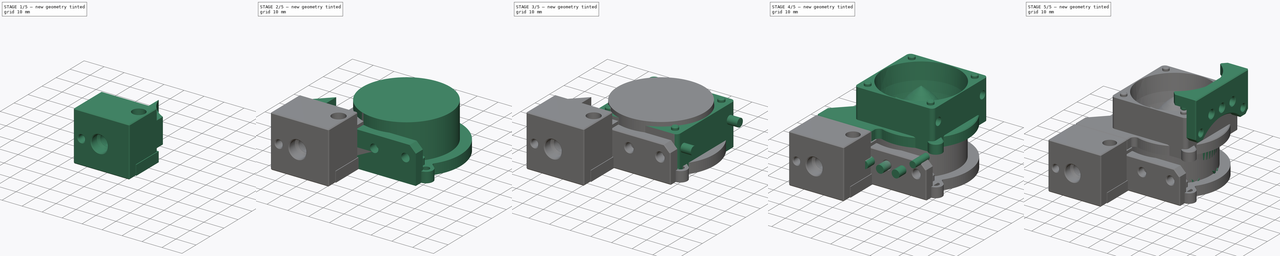
[diagram: build sequence overview — one tinted view per stage of 5, left to right]
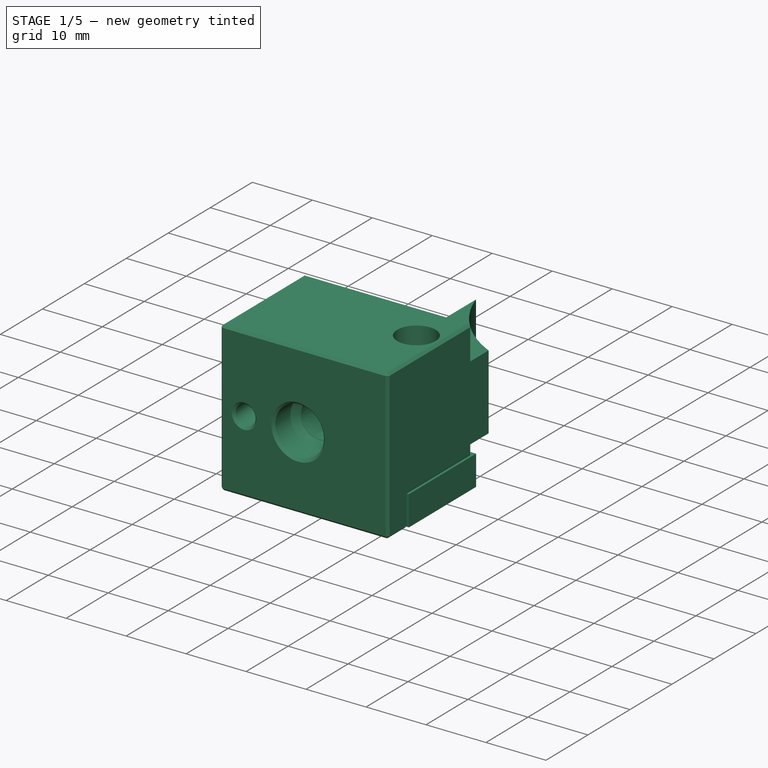
[diagram: stage 1 of 5 — iso view after this stage's code; geometry added in this stage tinted green]
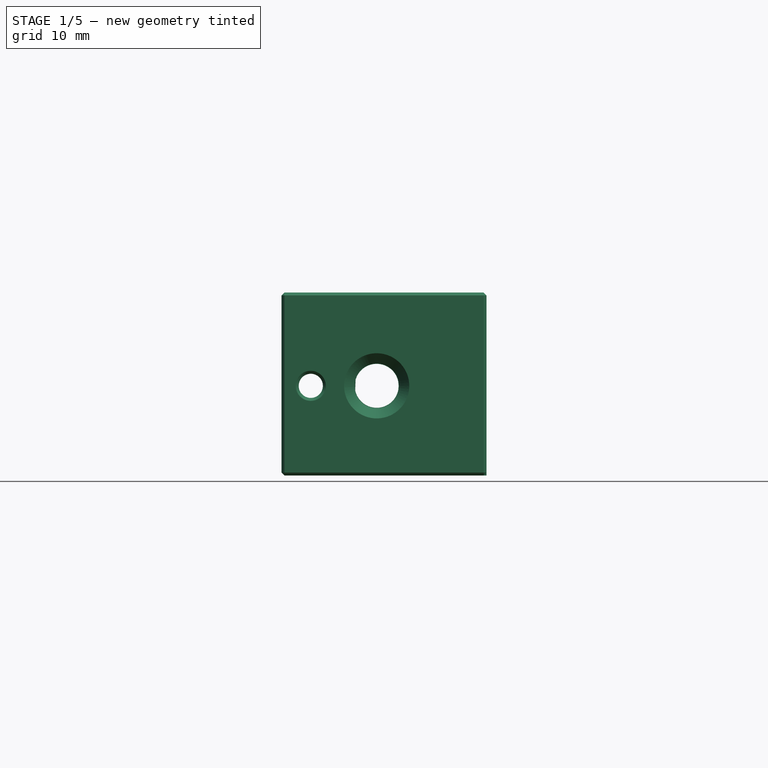
[diagram: stage 1 of 5 — front view after this stage's code; geometry added in this stage tinted green]
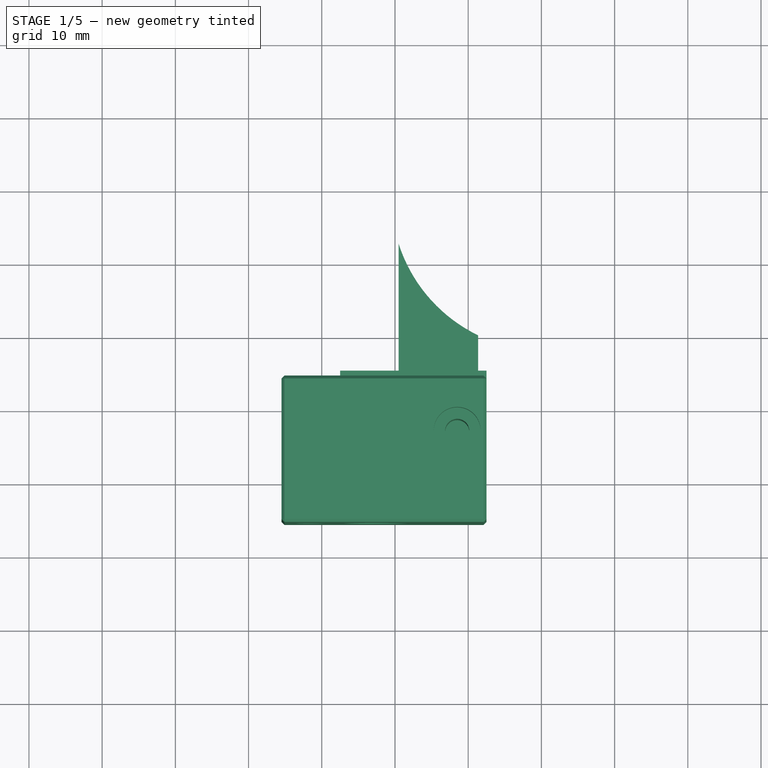
[diagram: stage 1 of 5 — top view after this stage's code; geometry added in this stage tinted green]
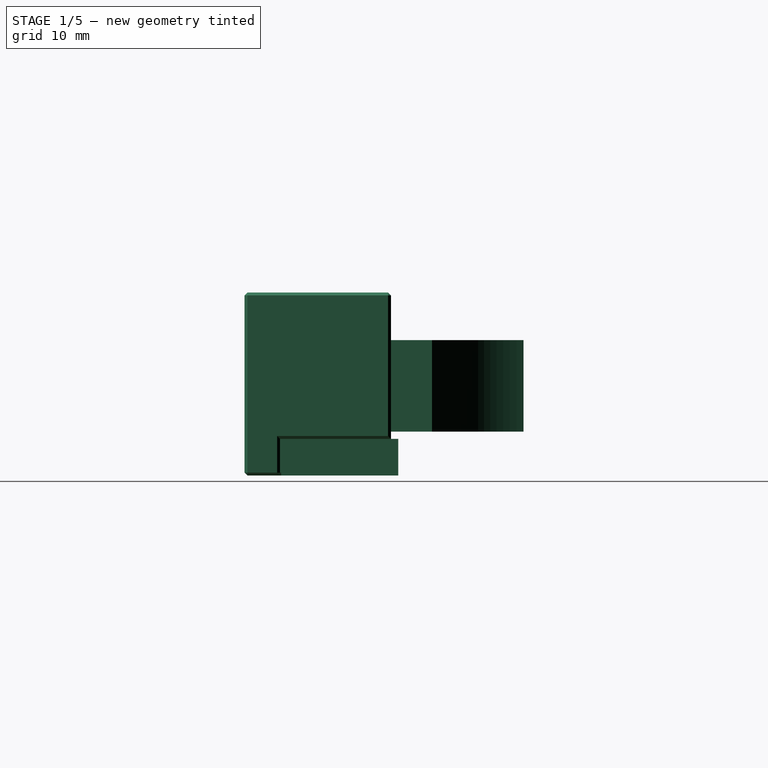
[diagram: stage 1 of 5 — right view after this stage's code; geometry added in this stage tinted green]
FCSTD DOCUMENT  (FreeCAD 0.19R24291 (Git))
Label: 40xx-to-5015-duct
License: Other
LicenseURL: GPL3
objects: Part::Cylinder×38, Part::Feature×35, Part::MultiFuse×22, Part::Cut×20, Part::Chamfer×18, Part::Box×13, Part::Refine×4, Part::Extrusion×3, Sketcher::SketchObject×2, PartDesign::Revolution×2, PartDesign::Body×2, App::Part×2, Part::Fillet×1
note: 162 computed .brp shape members not serialized (recipe doc carries the construction recipe); baked Part::Feature solids carry a one-line shape summary decoded from their .brp

FEATURE [Part::Box] Box001  label="Cube001"
  AttacherType = Attacher::AttachEngine3D
  Height = 5
  Length = 20
  Placement = pos=(-27.5,-40.5,0) rot=(0,0,1;0rad)
  Width = 16
FEATURE [Part::Feature] Chamfer009003007001
  shape: bbox 40 x 13 x 17 mm, 37 faces (baked)
FEATURE [Part::Box] Box008  label="Cube008"
  AttacherType = Attacher::AttachEngine3D
  Height = 25
  Length = 7.85
  Placement = pos=(-35.5,-45.5,0) rot=(0,0,1;0rad)
  Width = 20
FEATURE [Part::Box] Box012  label="Cube012"
  AttacherType = Attacher::AttachEngine3D
  Height = 20
  Length = 20.5
  Placement = pos=(-28,-45.5,5) rot=(0,0,1;0rad)
  Width = 20
FEATURE [Part::Box] Box013  label="Cube013"
  AttacherType = Attacher::AttachEngine3D
  Height = 12.5
  Length = 10.85
  Placement = pos=(-19.5,-25.5,6) rot=(0,0,1;0rad)
  Width = 19
FEATURE [Part::Cylinder] Cylinder039
  Angle = 360
  AttacherType = Attacher::AttachEngine3D
  Height = 22
  Placement = pos=(0.5,-1,0) rot=(0,0,1;0rad)
  Radius = 21
FEATURE [Part::Cut] Cut004003006006004
  Base = -> Box013
  Tool = -> Cylinder039
FEATURE [Part::Feature] AdditiveLoft001  label="loft"
  Placement = pos=(-22.5,-25.5,12.25) rot=(1,0,0;1.5708rad)
  shape: bbox 6.22 x 15 x 12.5 mm, 7 faces (baked)
FEATURE [Part::Cylinder] Cylinder040
  Angle = 360
  AttacherType = Attacher::AttachEngine3D
  Height = 27
  Placement = pos=(-11.5,-33,0) rot=(0,0,1;0rad)
  Radius = 1.65
FEATURE [Part::Cylinder] Cylinder041
  Angle = 360
  AttacherType = Attacher::AttachEngine3D
  Height = 4
  Placement = pos=(-11.5,-33,21) rot=(0,0,1;0rad)
  Radius = 3.2
FEATURE [Part::MultiFuse] Fusion001029002
  Shapes = -> [Cylinder041,Cylinder040]
FEATURE [Part::Cylinder] Cylinder042
  Angle = 360
  AttacherType = Attacher::AttachEngine3D
  Height = 5
  Placement = pos=(-31.5,-25.5,12.25) rot=(1,0,0;1.5708rad)
  Radius = 3.5
FEATURE [Part::Box] Box014  label="Cube014"
  AttacherType = Attacher::AttachEngine3D
  Height = 7
  Length = 3.5
  Placement = pos=(-35.5,-30.5,8.75) rot=(0,0,1;0rad)
  Width = 5
FEATURE [Part::Cylinder] Cylinder043
  Angle = 360
  AttacherType = Attacher::AttachEngine3D
  Height = 38
  Placement = pos=(-31.5,-16.5,12.25) rot=(1,0,0;1.5708rad)
  Radius = 1.65
FEATURE [Part::Box] Box015  label="Cube015"
  AttacherType = Attacher::AttachEngine3D
  Height = 5
  Length = 20.5
  Placement = pos=(-28,-45.5,0) rot=(0,0,1;0rad)
  Width = 4.85
FEATURE [Part::MultiFuse] Fusion001029004
  Shapes = -> [Box008,Box015,Box012,Cut004003006006004]
FEATURE [Part::Cut] Cut004003006006005
  Base = -> Fusion001029004
  Tool = -> Fusion001029002
FEATURE [Part::MultiFuse] Fusion001029005
  Shapes = -> [Cylinder043,Box014,Cylinder042]
FEATURE [Part::Cut] Cut004003006006006
  Base = -> Cut004003006006005
  Tool = -> Fusion001029005
FEATURE [Part::Cylinder] Cylinder044
  Angle = 360
  AttacherType = Attacher::AttachEngine3D
  Height = 10
  Placement = pos=(-22.5,-40.5,12.25) rot=(1,0,0;1.5708rad)
  Radius = 4.05
FEATURE [Part::Cut] Cut004003006006007
  Base = -> Cut004003006006006
  Tool = -> AdditiveLoft001
FEATURE [Part::Cylinder] Cylinder045
  Angle = 360
  AttacherType = Attacher::AttachEngine3D
  Height = 10
  Placement = pos=(-11.5,-33,0) rot=(0,0,1;0rad)
  Radius = 1.9
FEATURE [Part::Chamfer] Chamfer009003007004
  Base = -> Cylinder044
  Edges = 1 edges r=1: [Edge3]
FEATURE [Part::Cut] Cut004003006006008003  label="duct-r1-base"
  Base = -> Cut004003006006007
  Tool = -> Chamfer009003007004
FEATURE [Part::Refine] Cut004003006006008003001  label="duct-r1-base001"
  Source = -> Cut004003006006008003
FEATURE [Part::Chamfer] Chamfer009003007005
  Base = -> Cut004003006006008003001
  Edges = 22 edges r=0.4: [Edge1,Edge2,Edge3,Edge4,Edge5,Edge6,Edge7,Edge8,Edge21,Edge22,Edge23,Edge31,Edge32,Edge33,Edge36,Edge39,Edge40,Edge51,Edge80,Edge81,Edge82,Edge83]
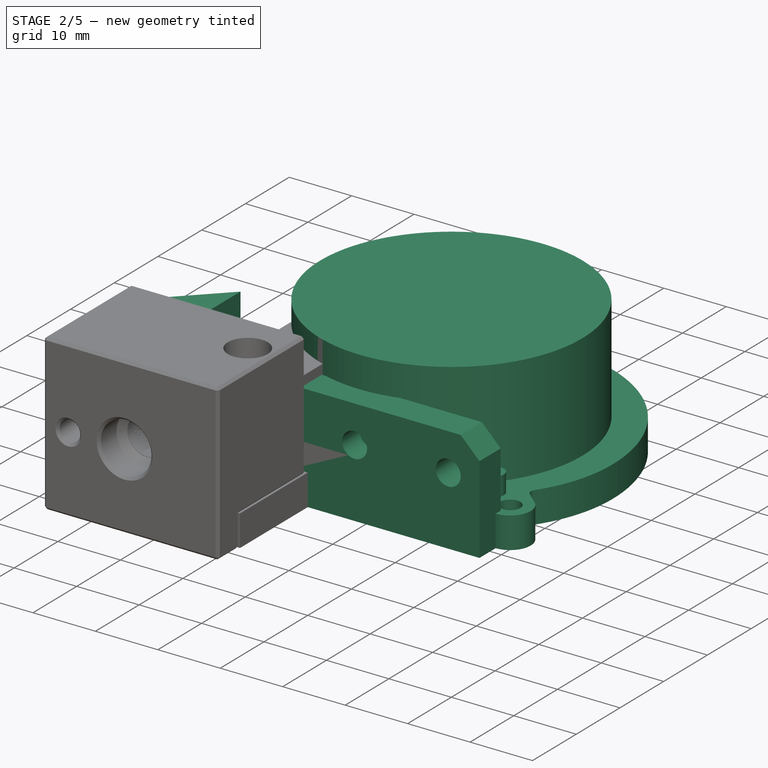
[diagram: stage 2 of 5 — iso view after this stage's code; geometry added in this stage tinted green]
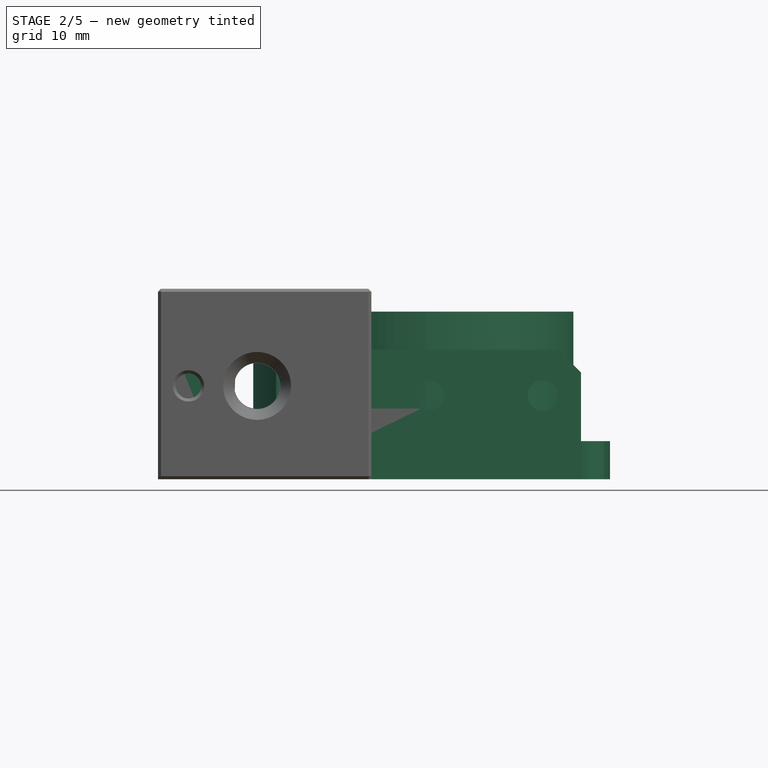
[diagram: stage 2 of 5 — front view after this stage's code; geometry added in this stage tinted green]
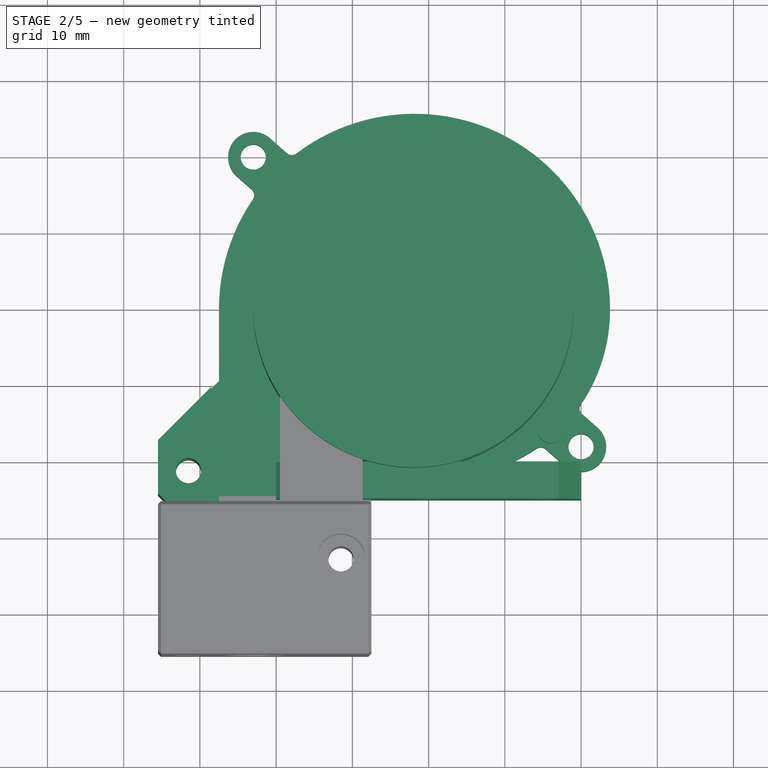
[diagram: stage 2 of 5 — top view after this stage's code; geometry added in this stage tinted green]
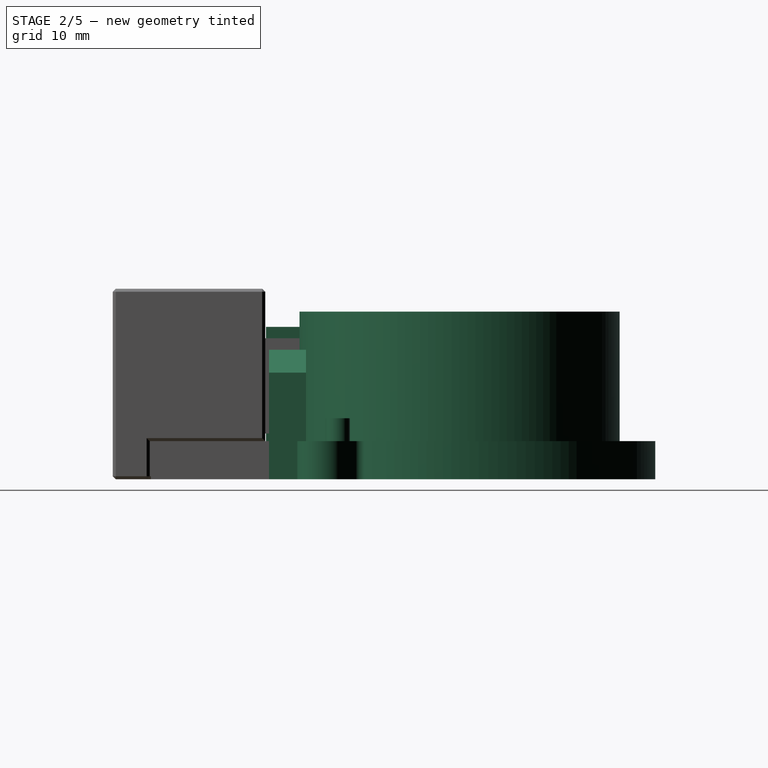
[diagram: stage 2 of 5 — right view after this stage's code; geometry added in this stage tinted green]
FEATURE [Part::Feature] Part__Mirroring001  label="GSDtimes-blade-rev"
  shape: bbox 38.97 x 38.57 x 18 mm, 263 faces (baked)
FEATURE [Part::Feature] Part__Feature003  label="bottom001"
  shape: bbox 4.5 x 0.5 x 5.2 mm, 6 faces (baked)
FEATURE [Part::Feature] Part__Feature002  label="bottom"
  shape: bbox 52.92 x 8.501 x 51.38 mm, 117 faces (baked)
FEATURE [Part::Feature] Part__Feature  label="turbine"
  Placement = pos=(0,3.2,0) rot=(0,1,0;0.138121rad)
  shape: bbox 38.92 x 10.5 x 38.96 mm, 229 faces (baked)
FEATURE [Part::Feature] Part__Feature001  label="top"
  Placement = pos=(-4e-15,15,1e-15) rot=(0,0,1;0rad)
  shape: bbox 51.3 x 8 x 51.07 mm, 45 faces (baked)
FEATURE [App::Part] bottom  label="bottom002"
  Group = -> [Part__Feature002,Part__Feature003]
  Origin = -> Origin002
FEATURE [App::Part] Radial_Cooling_Fan_5015_DC12V  label="Radial-Cooling-Fan-5015-DC12V"
  Group = -> [Part__Feature,Part__Feature001,bottom]
  Origin = -> Origin003
  Placement = pos=(0,1.1e-15,5) rot=(1,0,0;1.5708rad)
FEATURE [Part::Feature] Fusion001009001001_cs002  label="base-profile002"
  Placement = pos=(0,0,-1) rot=(0,0,1;0rad)
  shape: bbox 51.3 x 51.07 x 4e-07 mm, 0 faces, 0 solids (baked)
FEATURE [Part::Extrusion] Extrude001
  Base = -> Fusion001009001001_cs002
  Dir = (0,0,1)
  DirMode = 2
  FaceMakerClass = Part::FaceMakerBullseye
  LengthFwd = 5
  LengthRev = 0
  Solid = true
  Symmetric = false
FEATURE [Part::Cylinder] Cylinder011
  Angle = 360
  AttacherType = Attacher::AttachEngine3D
  Height = 9
  Placement = pos=(-23,20,0) rot=(0,0,1;0rad)
  Radius = 1.65
FEATURE [Part::Cylinder] Cylinder012
  Angle = 360
  AttacherType = Attacher::AttachEngine3D
  Height = 9
  Placement = pos=(20,-18,0) rot=(0,0,1;0rad)
  Radius = 1.65
FEATURE [Part::MultiFuse] Fusion001014
  Shapes = -> [Cylinder011,Cylinder012]
FEATURE [Part::MultiFuse] Fusion001015
  Shapes = -> [Extrude001,Box001]
FEATURE [Part::Cut] Cut003
  Base = -> Fusion001015
  Tool = -> Fusion001014
FEATURE [Part::Cylinder] Cylinder015
  Angle = 360
  AttacherType = Attacher::AttachEngine3D
  Height = 21
  Placement = pos=(-31.5,-21.4,0) rot=(0,0,1;0rad)
  Radius = 1.65
FEATURE [Part::Feature] Chamfer004001_cs
  Placement = pos=(0,0,-1) rot=(0,0,1;0rad)
  shape: bbox 10 x 16 x 3e-07 mm, 0 faces, 0 solids (baked)
FEATURE [Part::Extrusion] Extrude002
  Base = -> Chamfer004001_cs
  Dir = (0,0,1)
  DirMode = 2
  FaceMakerClass = Part::FaceMakerBullseye
  LengthFwd = 20
  LengthRev = 0
  Solid = true
  Symmetric = false
FEATURE [Part::Cut] Cut004003002
  Base = -> Extrude002
  Tool = -> Cylinder015
FEATURE [Part::Box] Box003  label="Cube003"
  AttacherType = Attacher::AttachEngine3D
  Height = 28
  Length = 8
  Placement = pos=(-28.5,-25.5,5) rot=(0,0,1;0rad)
  Width = 20
FEATURE [Part::Cut] Cut004003003
  Base = -> Cut004003002
  Tool = -> Box003
FEATURE [Part::Cylinder] Cylinder026
  Angle = 360
  AttacherType = Attacher::AttachEngine3D
  Height = 10
  Placement = pos=(0,-20,11) rot=(1,0,0;1.5708rad)
  Radius = 2
FEATURE [Part::Cylinder] Cylinder027
  Angle = 360
  AttacherType = Attacher::AttachEngine3D
  Height = 10
  Placement = pos=(-15,-20,11) rot=(1,0,0;1.5708rad)
  Radius = 2
FEATURE [Part::Cylinder] Cylinder029
  Angle = 360
  AttacherType = Attacher::AttachEngine3D
  Height = 10
  Placement = pos=(15,-20,11) rot=(1,0,0;1.5708rad)
  Radius = 2
FEATURE [Part::Cylinder] Cylinder031
  Angle = 360
  AttacherType = Attacher::AttachEngine3D
  Height = 3
  Placement = pos=(-16,-16,5) rot=(0,0,1;0rad)
  Radius = 1.6
FEATURE [Part::Box] Box006  label="Cube006"
  AttacherType = Attacher::AttachEngine3D
  Height = 17
  Length = 40
  Placement = pos=(-20,-25,0) rot=(0,0,1;0rad)
  Width = 4.85
FEATURE [Part::Cylinder] Cylinder033
  Angle = 360
  AttacherType = Attacher::AttachEngine3D
  Height = 3
  Placement = pos=(16,-16,5) rot=(0,0,1;0rad)
  Radius = 1.6
FEATURE [Part::MultiFuse] Fusion001028
  Shapes = -> [Cylinder027,Cylinder026,Cylinder029]
FEATURE [Part::Cut] Cut004003006006003
  Base = -> Box006
  Tool = -> Fusion001028
FEATURE [Part::Chamfer] Chamfer009003006
  Base = -> Cut004003006006003
  Edges = 2 edges r=3: [Edge2,Edge12]
FEATURE [Part::Cylinder] Cylinder037
  Angle = 360
  AttacherType = Attacher::AttachEngine3D
  Height = 22
  Placement = pos=(-2,0,0) rot=(0,0,1;0rad)
  Radius = 21
FEATURE [Part::Cut] Cut004003006006008002
  Base = -> Cut003
  Tool = -> Cylinder045
FEATURE [Part::MultiFuse] Fusion001029006
  Shapes = -> [Cut004003006006008002,Cut004003003]
FEATURE [Part::Chamfer] Chamfer009003007003  label="back-plate-r1-base"
  Base = -> Fusion001029006
  Edges = 6 edges r=0.4: [Edge24,Edge25,Edge26,Edge50,Edge85,Edge91]
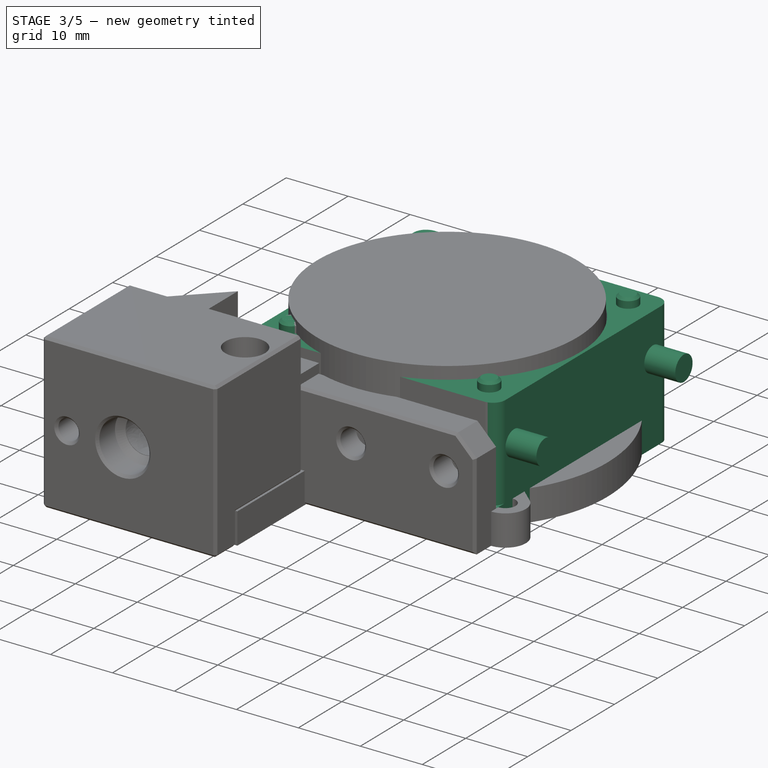
[diagram: stage 3 of 5 — iso view after this stage's code; geometry added in this stage tinted green]
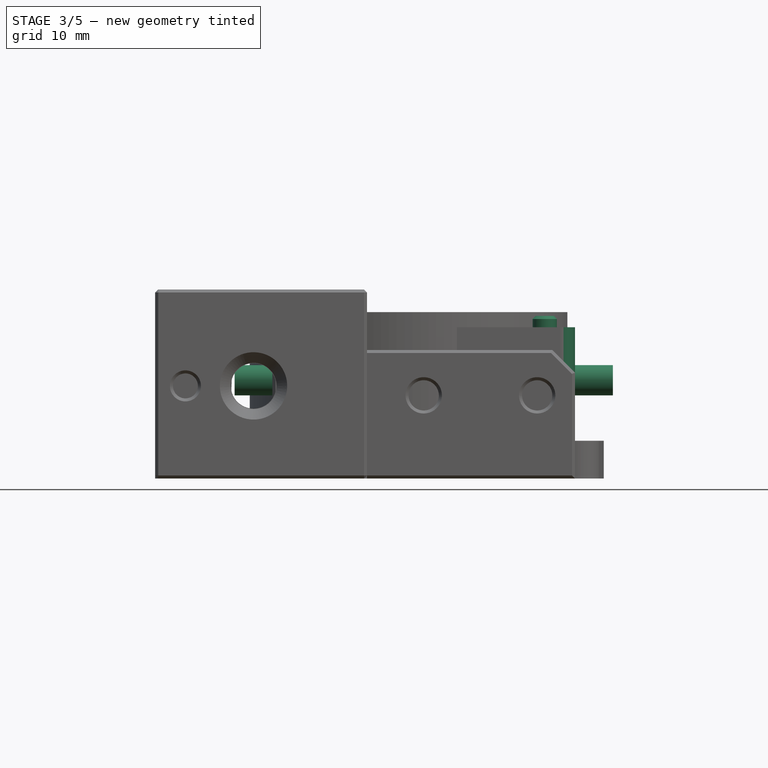
[diagram: stage 3 of 5 — front view after this stage's code; geometry added in this stage tinted green]
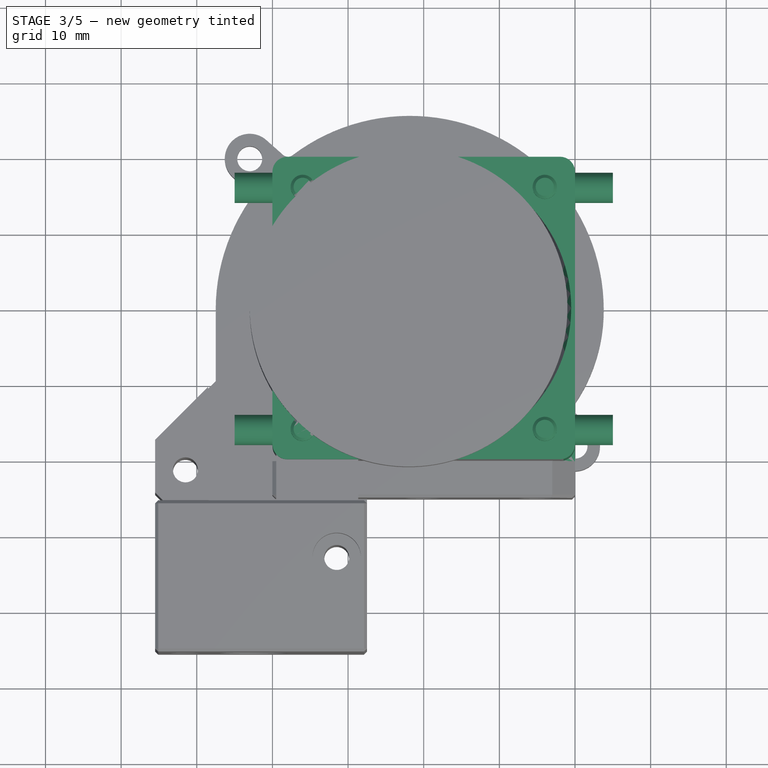
[diagram: stage 3 of 5 — top view after this stage's code; geometry added in this stage tinted green]
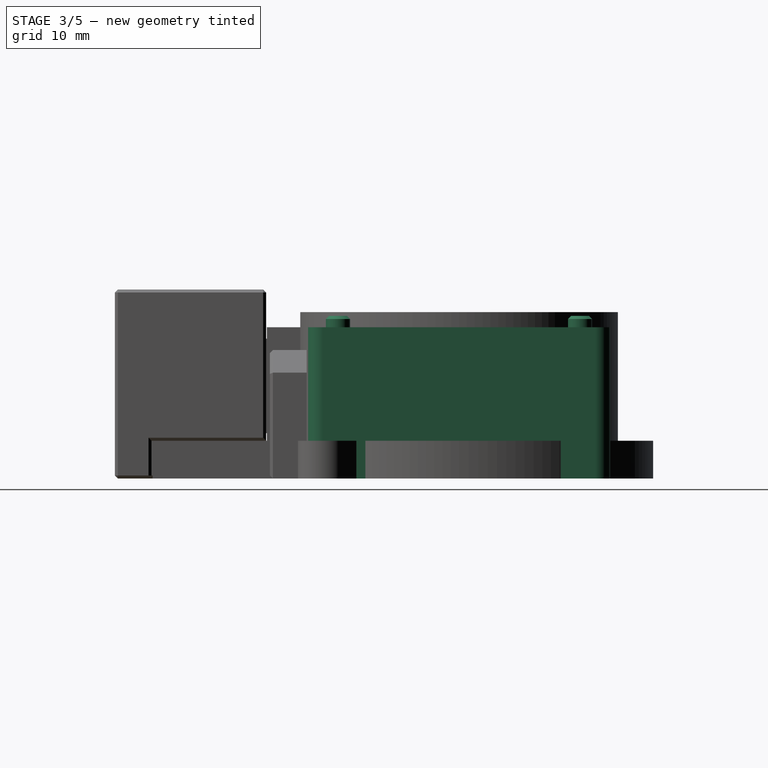
[diagram: stage 3 of 5 — right view after this stage's code; geometry added in this stage tinted green]
FEATURE [PartDesign::Body] Body001  label="guider"
  Group = -> [Sketch001,Revolution001]
  Origin = -> Origin001
  Tip = -> Revolution001
FEATURE [Part::Feature] Body001001  label="guide-gds-time"
  shape: bbox 24 x 24 x 18 mm, 2 faces (baked)
FEATURE [Part::Feature] Body001002  label="outer-duct001"
  shape: bbox 39 x 39 x 20 mm, 3 faces (baked)
FEATURE [Part::Feature] Fusion001001  label="stator-template001"
  shape: bbox 38.97 x 38.57 x 6.151 mm, 288 faces (baked)
FEATURE [Part::Box] Box  label="Cube"
  AttacherType = Attacher::AttachEngine3D
  Height = 20
  Length = 40
  Placement = pos=(-20,-20,0) rot=(0,0,1;0rad)
  Width = 40
FEATURE [Part::Fillet] Fillet
  Base = -> Box
  Edges = 4 edges r=2: [Edge1,Edge3,Edge5,Edge7]
FEATURE [Part::Cut] Cut
  Base = -> Fillet
  Tool = -> Body001002
FEATURE [Part::Cylinder] Cylinder
  Angle = 360
  AttacherType = Attacher::AttachEngine3D
  Height = 1.5
  Placement = pos=(-16,16,20) rot=(0,0,1;0rad)
  Radius = 1.6
FEATURE [Part::Cylinder] Cylinder001
  Angle = 360
  AttacherType = Attacher::AttachEngine3D
  Height = 1.5
  Placement = pos=(16,16,20) rot=(0,0,1;0rad)
  Radius = 1.6
FEATURE [Part::Cylinder] Cylinder002
  Angle = 360
  AttacherType = Attacher::AttachEngine3D
  Height = 1.5
  Placement = pos=(-16,-16,20) rot=(0,0,1;0rad)
  Radius = 1.6
FEATURE [Part::Cylinder] Cylinder003
  Angle = 360
  AttacherType = Attacher::AttachEngine3D
  Height = 1.5
  Placement = pos=(16,-16,20) rot=(0,0,1;0rad)
  Radius = 1.6
FEATURE [Part::MultiFuse] Fusion001007
  Shapes = -> [Cylinder003,Cylinder,Cylinder001,Cylinder002]
FEATURE [Part::Chamfer] Chamfer
  Base = -> Fusion001007
  Edges = 4 edges r=0.4: [Edge1,Edge4,Edge7,Edge10]
FEATURE [Part::MultiFuse] Fusion001010
  Shapes = -> [Cut,Chamfer]
FEATURE [Part::Cylinder] Cylinder007
  Angle = 360
  AttacherType = Attacher::AttachEngine3D
  Height = 10
  Placement = pos=(-16,15,10) rot=(-1,0,0;1.5708rad)
  Radius = 2
FEATURE [Part::Cylinder] Cylinder008
  Angle = 360
  AttacherType = Attacher::AttachEngine3D
  Height = 10
  Placement = pos=(16,15,10) rot=(-1,0,0;1.5708rad)
  Radius = 2
FEATURE [Part::Cylinder] Cylinder009
  Angle = 360
  AttacherType = Attacher::AttachEngine3D
  Height = 10
  Placement = pos=(16,-25,10) rot=(-1,0,0;1.5708rad)
  Radius = 2
FEATURE [Part::Cylinder] Cylinder010
  Angle = 360
  AttacherType = Attacher::AttachEngine3D
  Height = 10
  Placement = pos=(-16,-25,10) rot=(-1,0,0;1.5708rad)
  Radius = 2
FEATURE [Part::MultiFuse] Fusion001012
  Placement = pos=(0,0,3) rot=(0,0,1;4.71239rad)
  Shapes = -> [Cylinder007,Cylinder008,Cylinder009,Cylinder010]
FEATURE [Part::Cylinder] Cylinder030
  Angle = 360
  AttacherType = Attacher::AttachEngine3D
  Height = 6
  Radius = 20.9
FEATURE [Part::Box] Box007  label="Cube007"
  AttacherType = Attacher::AttachEngine3D
  Height = 5
  Length = 40
  Placement = pos=(-20,-25,0) rot=(0,0,1;0rad)
  Width = 13
FEATURE [Part::Chamfer] Chamfer009003002
  Base = -> Box007
  Edges = 2 edges r=2: [Edge3,Edge7]
FEATURE [Part::Cut] Cut004003006006002
  Base = -> Chamfer009003002
  Tool = -> Cylinder030
FEATURE [Part::MultiFuse] Fusion001027
  Shapes = -> [Cylinder031,Cylinder033]
FEATURE [Part::Chamfer] Chamfer009003005
  Base = -> Fusion001027
  Edges = 2 edges r=0.4: [Edge1,Edge4]
FEATURE [Part::MultiFuse] Fusion001029  label="top-clamp-base"
  Shapes = -> [Chamfer009003005,Cut004003006006002,Chamfer009003006]
FEATURE [Part::Refine] Fusion001029001  label="top-clamp-base001"
  Source = -> Fusion001029
FEATURE [Part::Chamfer] Chamfer009003007
  Base = -> Fusion001029001
  Edges = 12 edges r=0.4: [Edge1,Edge14,Edge15,Edge16,Edge25,Edge28,Edge29,Edge31,Edge33,Edge57,Edge59,Edge61]
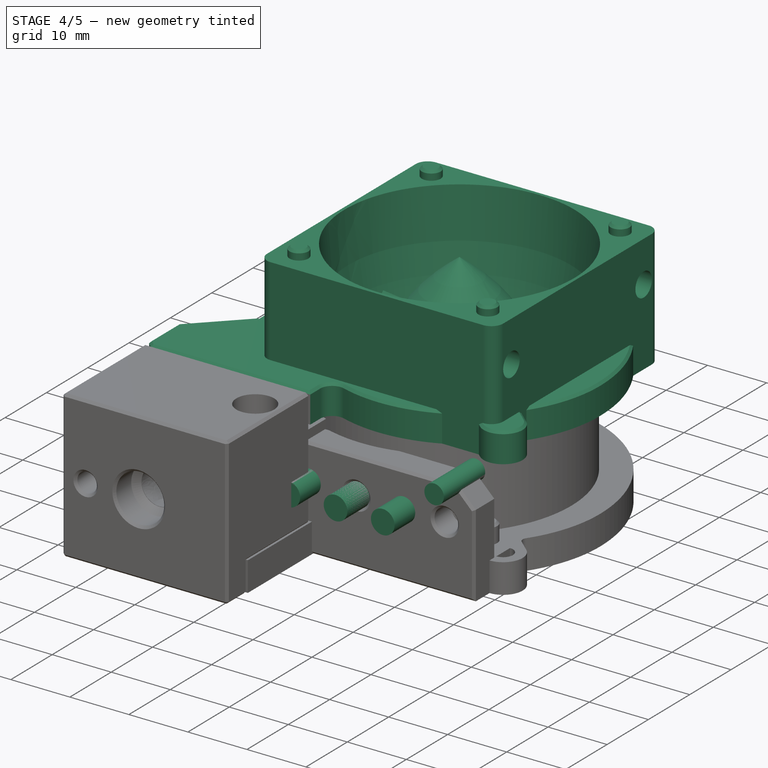
[diagram: stage 4 of 5 — iso view after this stage's code; geometry added in this stage tinted green]
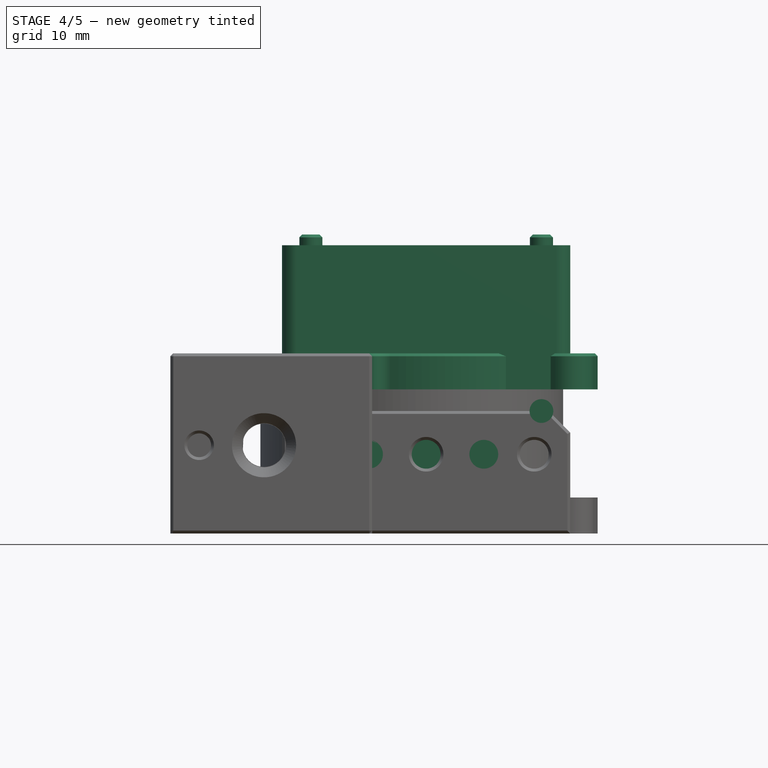
[diagram: stage 4 of 5 — front view after this stage's code; geometry added in this stage tinted green]
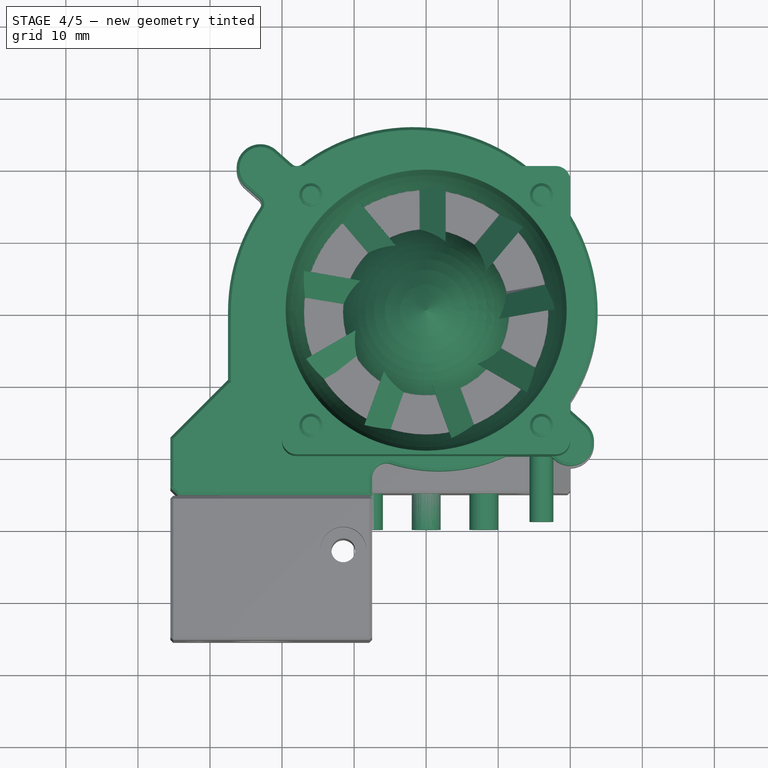
[diagram: stage 4 of 5 — top view after this stage's code; geometry added in this stage tinted green]
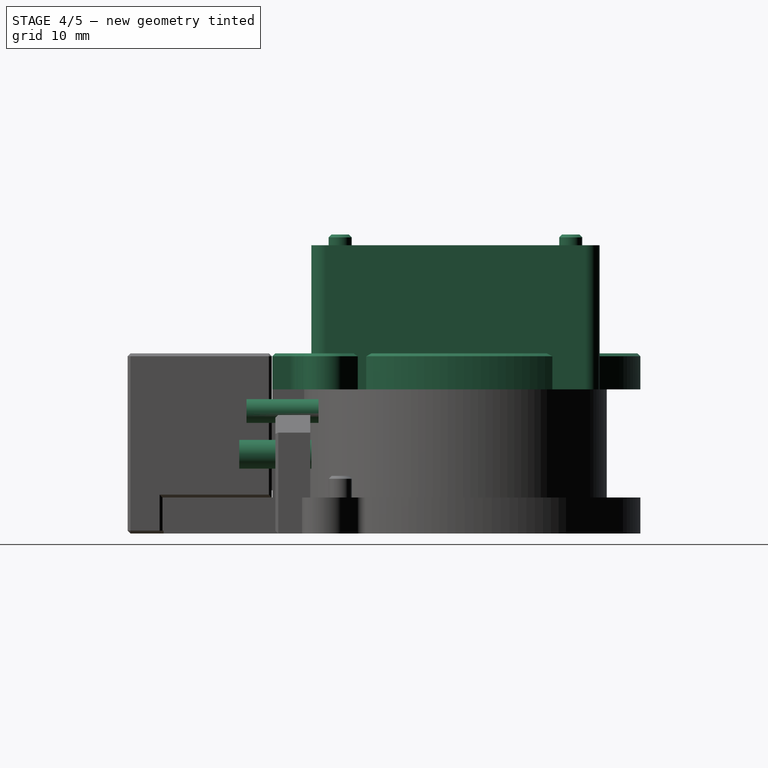
[diagram: stage 4 of 5 — right view after this stage's code; geometry added in this stage tinted green]
FEATURE [Part::Feature] Body001003  label="outer-duct002"
  shape: bbox 39 x 39 x 20 mm, 3 faces (baked)
FEATURE [Part::Cylinder] Cylinder005
  Angle = 360
  AttacherType = Attacher::AttachEngine3D
  Height = 4
  Placement = pos=(-23,20,0) rot=(0,0,1;0rad)
  Radius = 1.9
FEATURE [Part::Cylinder] Cylinder006
  Angle = 360
  AttacherType = Attacher::AttachEngine3D
  Height = 4
  Placement = pos=(20,-18,0) rot=(0,0,1;0rad)
  Radius = 1.9
FEATURE [Part::Feature] Fusion001009001001_cs  label="base-profile"
  Placement = pos=(0,0,-1) rot=(0,0,1;0rad)
  shape: bbox 51.3 x 51.07 x 4e-07 mm, 0 faces, 0 solids (baked)
FEATURE [Part::Feature] Fusion001009001001_cs001  label="base-profile001"
  Placement = pos=(0,0,-1) rot=(0,0,1;0rad)
  shape: bbox 51.3 x 51.07 x 4e-07 mm, 0 faces, 0 solids (baked)
FEATURE [Part::Extrusion] Extrude
  Base = -> Fusion001009001001_cs001
  Dir = (0,0,1)
  DirMode = 2
  FaceMakerClass = Part::FaceMakerBullseye
  LengthFwd = 5
  LengthRev = 0
  Solid = true
  Symmetric = false
FEATURE [Part::Chamfer] Chamfer001
  Base = -> Extrude
  Edges = 19 edges r=0.4: [Edge4,Edge7,Edge10,Edge13,Edge16,Edge19,Edge22,Edge25,Edge28,Edge31,Edge34,Edge37,Edge40,Edge43,Edge46,Edge49,Edge52,Edge54,Edge57]
FEATURE [Part::Cut] Cut001
  Base = -> Chamfer001
  Tool = -> Body001003
FEATURE [Part::MultiFuse] Fusion001009  label="5015-mount-bolt-hole"
  Shapes = -> [Cylinder006,Cylinder005]
FEATURE [Part::Box] Box002  label="Cube002"
  AttacherType = Attacher::AttachEngine3D
  Height = 5
  Length = 10
  Placement = pos=(-35.5,-25.4,0) rot=(0,0,1;0rad)
  Width = 16
FEATURE [Part::Chamfer] Chamfer003
  Base = -> Box002
  Edges = 1 edges r=8: [Edge3]
FEATURE [Part::Chamfer] Chamfer004
  Base = -> Chamfer003
  Edges = 1 edges r=1: [Edge2]
FEATURE [Part::Chamfer] Chamfer005
  Base = -> Chamfer004
  Edges = 6 edges r=0.4: [Edge1,Edge5,Edge6,Edge7,Edge8,Edge9]
FEATURE [Part::Cylinder] Cylinder016
  Angle = 360
  AttacherType = Attacher::AttachEngine3D
  Height = 4
  Placement = pos=(-31.5,-21.4,0) rot=(0,0,1;0rad)
  Radius = 1.9
FEATURE [Part::Cut] Cut004002
  Base = -> Chamfer005
  Tool = -> Cylinder016
FEATURE [Part::MultiFuse] Fusion001017
  Shapes = -> [Cut001,Cut004002]
FEATURE [Part::Cut] Cut004003005
  Base = -> Fusion001010
  Tool = -> Fusion001012
FEATURE [Part::Cylinder] Cylinder020
  Angle = 360
  AttacherType = Attacher::AttachEngine3D
  Height = 10
  Placement = pos=(16,-19,17) rot=(1,0,0;1.5708rad)
  Radius = 1.65
FEATURE [Part::Cylinder] Cylinder021
  Angle = 360
  AttacherType = Attacher::AttachEngine3D
  Height = 10
  Placement = pos=(-16,-19,17) rot=(1,0,0;1.5708rad)
  Radius = 1.65
FEATURE [Part::MultiFuse] Fusion001023
  Shapes = -> [Cylinder021,Cylinder020]
FEATURE [Part::Cylinder] Cylinder023
  Angle = 360
  AttacherType = Attacher::AttachEngine3D
  Height = 10
  Placement = pos=(0,-20,11) rot=(1,0,0;1.5708rad)
  Radius = 2
FEATURE [Part::Cylinder] Cylinder024
  Angle = 360
  AttacherType = Attacher::AttachEngine3D
  Height = 10
  Placement = pos=(-8,-20,11) rot=(1,0,0;1.5708rad)
  Radius = 2
FEATURE [Part::Cylinder] Cylinder025
  Angle = 360
  AttacherType = Attacher::AttachEngine3D
  Height = 10
  Placement = pos=(8,-20,11) rot=(1,0,0;1.5708rad)
  Radius = 2
FEATURE [Part::MultiFuse] Fusion001025
  Shapes = -> [Cylinder025,Cylinder023,Cylinder024]
FEATURE [Part::MultiFuse] Fusion001026
  Shapes = -> [Part__Mirroring001,Fusion001017,Cut004003005]
FEATURE [Part::Cut] Cut004003006006  label="top-r1-base"
  Base = -> Fusion001026
  Tool = -> Fusion001009
FEATURE [Part::Refine] Cut004003006006001  label="top-r1-base001"
  Placement = pos=(0,0,20) rot=(0,0,1;0rad)
  Source = -> Cut004003006006
FEATURE [Part::Chamfer] Chamfer009003
  Base = -> Cut004003006006001
  Edges = 3 edges r=0.4: [Edge977,Edge980,Edge981]
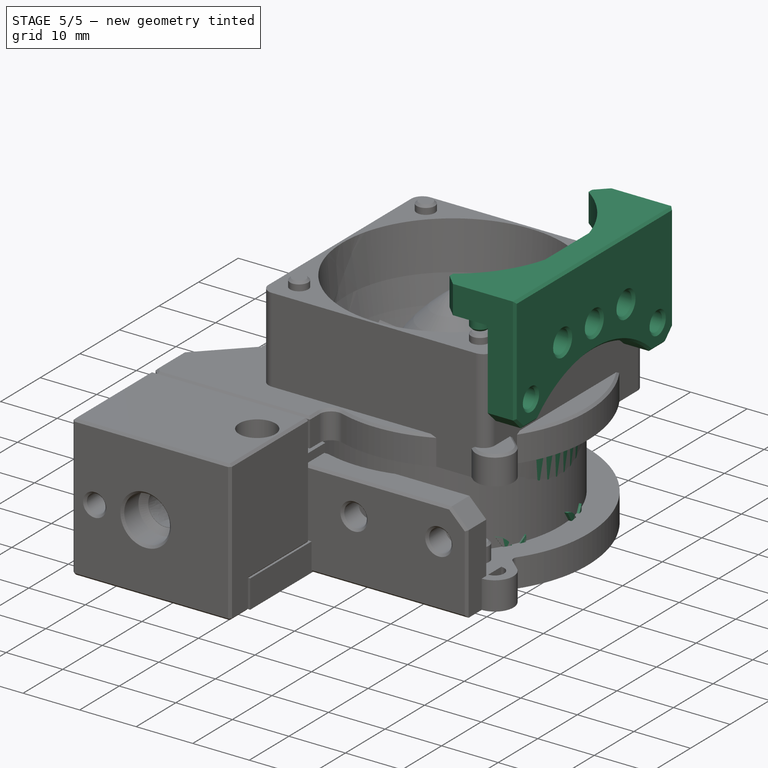
[diagram: stage 5 of 5 — iso view after this stage's code; geometry added in this stage tinted green]
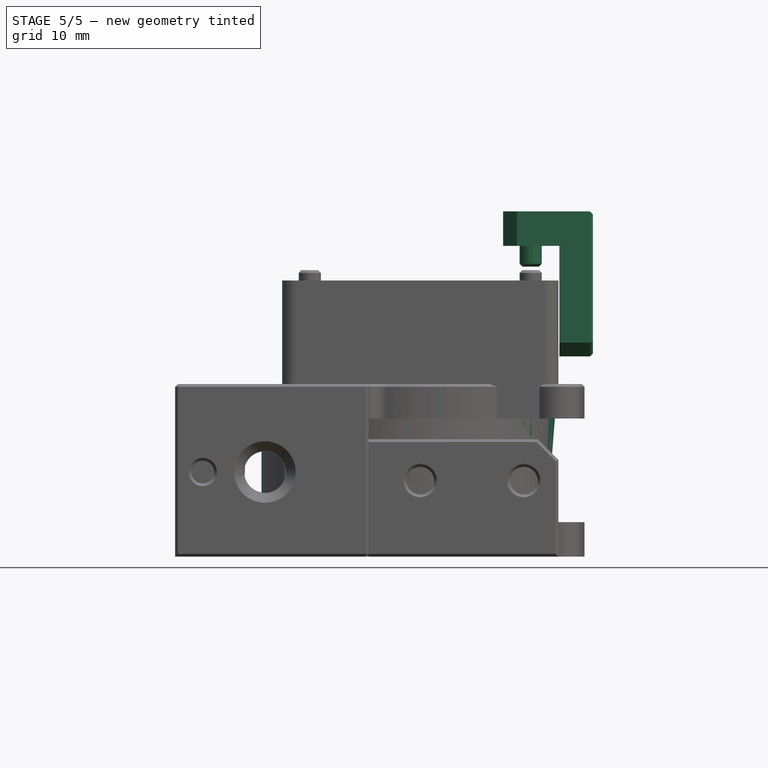
[diagram: stage 5 of 5 — front view after this stage's code; geometry added in this stage tinted green]
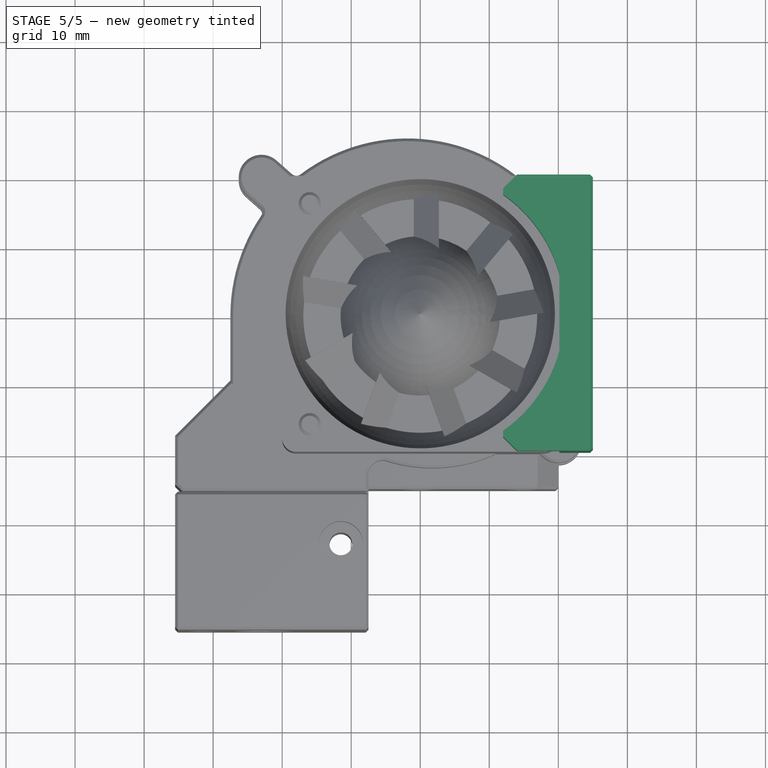
[diagram: stage 5 of 5 — top view after this stage's code; geometry added in this stage tinted green]
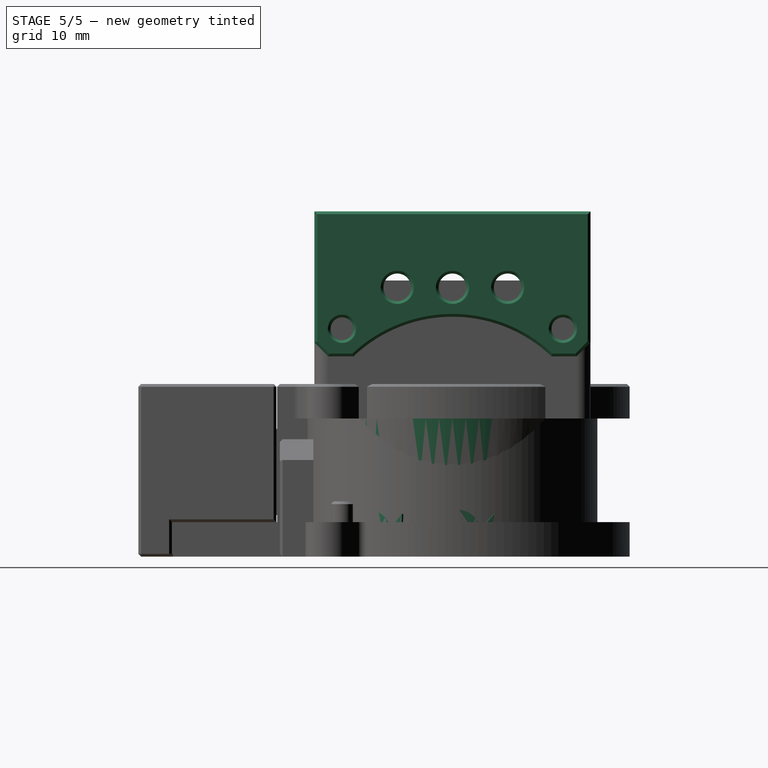
[diagram: stage 5 of 5 — right view after this stage's code; geometry added in this stage tinted green]
FEATURE [Part::Feature] Common001002001  label="rotor-blade-000"
  shape: bbox 4.559 x 19.5 x 6.782 mm, 30 faces (baked)
FEATURE [Part::Feature] Common001001001  label="stator-blade-000"
  shape: bbox 5.382 x 19.5 x 6.151 mm, 30 faces (baked)
FEATURE [Part::Feature] Common001002002  label="rotor-blade-001"
  shape: bbox 4.559 x 19.5 x 6.782 mm, 30 faces (baked)
FEATURE [Part::Feature] Common001002003  label="rotor-blade-002"
  Placement = pos=(0,0,0) rot=(0,0,-1;0.698132rad)
  shape: bbox 15.94 x 17.77 x 6.782 mm, 30 faces (baked)
FEATURE [Part::Feature] Common001002004  label="rotor-blade-003"
  Placement = pos=(0,0,0) rot=(0,0,-1;1.39626rad)
  shape: bbox 19.86 x 7.853 x 6.782 mm, 30 faces (baked)
FEATURE [Part::Feature] Common001002005  label="rotor-blade-004"
  Placement = pos=(0,0,0) rot=(0,0,1;4.18879rad)
  shape: bbox 19.05 x 13.63 x 6.782 mm, 30 faces (baked)
FEATURE [Part::Feature] Common001002006  label="rotor-blade-005"
  Placement = pos=(0,0,0) rot=(0,0,1;3.49066rad)
  shape: bbox 10.91 x 19.76 x 6.782 mm, 30 faces (baked)
FEATURE [Part::Feature] Common001002007  label="rotor-blade-006"
  Placement = pos=(0,0,0) rot=(0,0,1;2.79253rad)
  shape: bbox 10.91 x 19.76 x 6.782 mm, 30 faces (baked)
FEATURE [Part::Feature] Common001002008  label="rotor-blade-007"
  Placement = pos=(0,0,0) rot=(0,0,1;2.0944rad)
  shape: bbox 19.05 x 13.63 x 6.782 mm, 30 faces (baked)
FEATURE [Part::Feature] Common001002009  label="rotor-blade-008"
  Placement = pos=(0,0,0) rot=(0,0,1;1.39626rad)
  shape: bbox 19.86 x 7.853 x 6.782 mm, 30 faces (baked)
FEATURE [Part::Feature] Common001002010  label="rotor-blade-009"
  Placement = pos=(0,0,0) rot=(0,0,1;0.698132rad)
  shape: bbox 15.94 x 17.77 x 6.782 mm, 30 faces (baked)
FEATURE [Part::MultiFuse] Fusion  label="gitir-template"
  Shapes = -> [Common001002010,Common001002009,Common001002008,Common001002007,Common001002006,Common001002005,Common001002004,Common001002003,Common001002002]
FEATURE [Part::Feature] Common001002011  label="stator-blade-001"
  shape: bbox 5.382 x 19.5 x 6.151 mm, 30 faces (baked)
FEATURE [Part::Feature] Common001002012  label="stator-blade-002"
  Placement = pos=(0,0,0) rot=(0,0,-1;0.698132rad)
  shape: bbox 16.54 x 18.25 x 6.151 mm, 30 faces (baked)
FEATURE [Part::Feature] Common001002013  label="stator-blade-003"
  Placement = pos=(0,0,0) rot=(0,0,-1;1.39626rad)
  shape: bbox 19.96 x 8.654 x 6.151 mm, 30 faces (baked)
FEATURE [Part::Feature] Common001002014  label="stator-blade-004"
  Placement = pos=(0,0,0) rot=(0,0,1;4.18879rad)
  shape: bbox 19.42 x 14.32 x 6.151 mm, 30 faces (baked)
FEATURE [Part::Feature] Common001002015  label="stator-blade-005"
  Placement = pos=(0,0,0) rot=(0,0,1;3.49066rad)
  shape: bbox 11.66 x 19.99 x 6.151 mm, 30 faces (baked)
FEATURE [Part::Feature] Common001002016  label="stator-blade-006"
  Placement = pos=(0,0,0) rot=(0,0,1;2.79253rad)
  shape: bbox 11.66 x 19.99 x 6.151 mm, 30 faces (baked)
FEATURE [Part::Feature] Common001002017  label="stator-blade-007"
  Placement = pos=(0,0,0) rot=(0,0,1;2.0944rad)
  shape: bbox 19.42 x 14.32 x 6.151 mm, 30 faces (baked)
FEATURE [Part::Feature] Common001002018  label="stator-blade-008"
  Placement = pos=(0,0,0) rot=(0,0,1;1.39626rad)
  shape: bbox 19.95 x 8.655 x 6.151 mm, 30 faces (baked)
FEATURE [Part::Feature] Common001002019  label="stator-blade-009"
  Placement = pos=(0,0,0) rot=(0,0,1;0.698132rad)
  shape: bbox 16.54 x 18.26 x 6.151 mm, 30 faces (baked)
FEATURE [Part::MultiFuse] Fusion001  label="stator-template"
  Shapes = -> [Common001002019,Common001002018,Common001002017,Common001002016,Common001002015,Common001002014,Common001002013,Common001002012,Common001002011]
FEATURE [Sketcher::SketchObject] Sketch
  FullyConstrained = false
  MapMode = 5
  Placement = pos=(0,0,0) rot=(1,0,0;1.5708rad)
  Support = -> [XZ_Plane]
  sketch-geometry (12):
    g0: LineSegment StartX=0 StartY=0 StartZ=0 EndX=-16.5 EndY=0 EndZ=0
    g1: LineSegment StartX=0 StartY=0 StartZ=0 EndX=0 EndY=20 EndZ=0
    g2: LineSegment StartX=0 StartY=20 StartZ=0 EndX=-19.5 EndY=20 EndZ=0
    g3-g7: Circle x5 (B-spline internal-alignment scaffolding for g8; pole/knot coordinates omitted)
    g8: BSplineCurve PolesCount=5 KnotsCount=3 Degree=3 IsPeriodic=0
    g9: GeomPoint X=-19.5 Y=20 Z=0
    g10: GeomPoint X=-18.3945 Y=8.67643 Z=0
    g11: GeomPoint X=-16.5 Y=0 Z=0
  constraints (17):
    c: Coincident(g0,g-1)
    c: Horizontal(g0)
    c: Coincident(g1,g0)
    c: PointOnObject(g1,g-2)
    c: Coincident(g2,g1)
    c: Horizontal(g2)
    c: DistanceX(g0,g0) = 16.5
    c: DistanceX(g2,g2) = 19.5
    c: DistanceY(g1,g1) = 20
    c: Coincident(g8,g2)
    c: Weight(g3) = 1
    c: Equal(g3, g4-g7) x4
    c: Coincident(g8,g0)
    c: InternalAlignment(g3-g7 -> g8) x5
    c: InternalAlignment(g9,g8)
    c: InternalAlignment(g10,g8)
    c: InternalAlignment(g11,g8)
FEATURE [PartDesign::Revolution] Revolution
  Angle = 360
  Axis = (0,2e-16,1)
  Base = (0,0,0)
  Placement = pos=(0,0,0) rot=(1,0,0;1.5708rad)
  Profile = -> Sketch
  ReferenceAxis = -> Sketch [V_Axis]
FEATURE [PartDesign::Body] Body  label="outer-duct"
  Group = -> [Sketch,Revolution]
  Origin = -> Origin
  Tip = -> Revolution
FEATURE [Sketcher::SketchObject] Sketch001
  FullyConstrained = false
  MapMode = 5
  Placement = pos=(0,0,0) rot=(1,0,0;1.5708rad)
  Support = -> [XZ_Plane001]
  sketch-geometry (9):
    g0: LineSegment StartX=0 StartY=0 StartZ=0 EndX=-12 EndY=0 EndZ=0
    g1: LineSegment StartX=0 StartY=0 StartZ=0 EndX=0 EndY=18 EndZ=0
    g2-g5: Circle x4 (B-spline internal-alignment scaffolding for g6; pole/knot coordinates omitted)
    g6: BSplineCurve PolesCount=4 KnotsCount=2 Degree=3 IsPeriodic=0
    g7: GeomPoint X=0 Y=18 Z=0
    g8: GeomPoint X=-12 Y=0 Z=0
  constraints (14):
    c: Coincident(g0,g-1)
    c: PointOnObject(g0,g-1)
    c: Coincident(g1,g0)
    c: PointOnObject(g1,g-2)
    c: DistanceX(g0,g0) = 12
    c: DistanceY(g1,g1) = 18
    c: Coincident(g6,g1)
    c: Weight(g2) = 1
    c: Equal(g2,g3)
    c: Equal(g2,g4)
    c: Equal(g2,g5)
    c: InternalAlignment(g2-g5 -> g6) x4
    c: InternalAlignment(g7,g6)
    c: InternalAlignment(g8,g6)
FEATURE [PartDesign::Revolution] Revolution001
  Angle = 360
  Axis = (0,2e-16,1)
  Base = (0,0,0)
  Placement = pos=(0,0,0) rot=(1,0,0;1.5708rad)
  Profile = -> Sketch001
  ReferenceAxis = -> Sketch001 [V_Axis]
FEATURE [Part::Cylinder] Cylinder004
  Angle = 360
  AttacherType = Attacher::AttachEngine3D
  Height = 10
  Radius = 16.5
FEATURE [Part::MultiFuse] Fusion001011  label="GDStimes-blade"
  Shapes = -> [Body001001,Fusion001001]
FEATURE [Part::Cylinder] Cylinder017
  Angle = 360
  AttacherType = Attacher::AttachEngine3D
  Height = 6
  Radius = 20.9
FEATURE [Part::Box] Box004  label="Cube004"
  AttacherType = Attacher::AttachEngine3D
  Height = 5
  Length = 40
  Placement = pos=(-20,-25,0) rot=(0,0,1;0rad)
  Width = 13
FEATURE [Part::Cylinder] Cylinder018
  Angle = 360
  AttacherType = Attacher::AttachEngine3D
  Height = 3
  Placement = pos=(-16,-16,5) rot=(0,0,1;0rad)
  Radius = 1.6
FEATURE [Part::Cylinder] Cylinder019
  Angle = 360
  AttacherType = Attacher::AttachEngine3D
  Height = 3
  Placement = pos=(16,-16,5) rot=(0,0,1;0rad)
  Radius = 1.6
FEATURE [Part::MultiFuse] Fusion001022
  Shapes = -> [Cylinder018,Cylinder019]
FEATURE [Part::Chamfer] Chamfer006
  Base = -> Fusion001022
  Edges = 2 edges r=0.4: [Edge1,Edge4]
FEATURE [Part::Box] Box005  label="Cube005"
  AttacherType = Attacher::AttachEngine3D
  Height = 21
  Length = 40
  Placement = pos=(-20,-25,0) rot=(0,0,1;0rad)
  Width = 4.85
FEATURE [Part::Cylinder] Cylinder022
  Angle = 360
  AttacherType = Attacher::AttachEngine3D
  Height = 6
  Placement = pos=(0,-20,36) rot=(1,0,0;1.5708rad)
  Radius = 20.75
FEATURE [Part::Cut] Cut004003006002
  Base = -> Box005
  Tool = -> Cylinder022
FEATURE [Part::Chamfer] Chamfer008
  Base = -> Box004
  Edges = 2 edges r=2: [Edge3,Edge7]
FEATURE [Part::Cut] Cut004003006004
  Base = -> Chamfer008
  Tool = -> Cylinder017
FEATURE [Part::Cut] Cut004003006003
  Base = -> Cut004003006002
  Tool = -> Fusion001023
FEATURE [Part::Chamfer] Chamfer007
  Base = -> Cut004003006003
  Edges = 2 edges r=2: [Edge2,Edge21]
FEATURE [Part::MultiFuse] Fusion001024
  Shapes = -> [Cut004003006004,Chamfer007,Chamfer006]
FEATURE [Part::Cut] Cut004003006005
  Base = -> Fusion001024
  Tool = -> Fusion001025
FEATURE [Part::Chamfer] Chamfer009  label="fan-clamp-base"
  Base = -> Cut004003006005
  Edges = 3 edges r=0.4: [Edge41,Edge43,Edge44]
FEATURE [Part::Refine] Chamfer009001  label="fan-clamp-base001"
  Source = -> Chamfer009
FEATURE [Part::Chamfer] Chamfer009002
  Base = -> Chamfer009001
  Edges = 13 edges r=0.4: [Edge25,Edge31,Edge32,Edge38,Edge43,Edge45,Edge47,Edge54,Edge68,Edge70,Edge75,Edge77,Edge79]
  Placement = pos=(0,-5.8e-15,50) rot=(0.707107,-0.707107,0;3.14159rad)
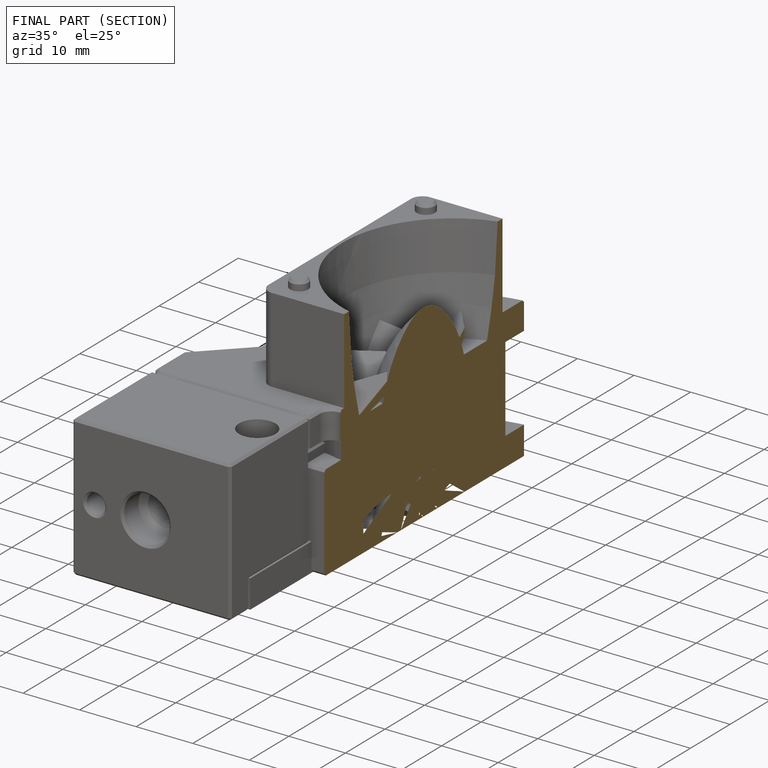
[diagram: finished part — half-section view (interior)]
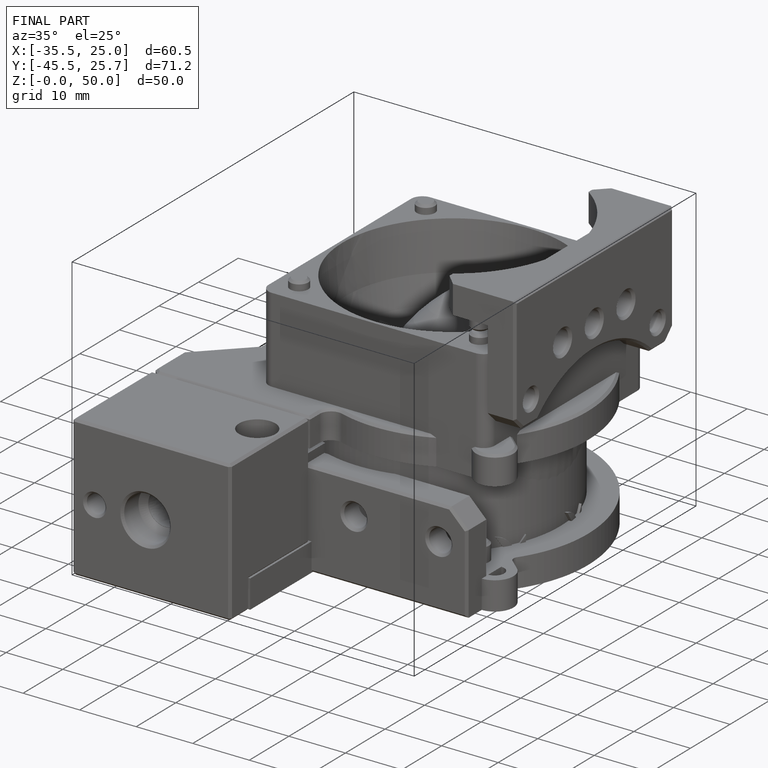
[diagram: finished part — iso view with bounding-box wireframe]
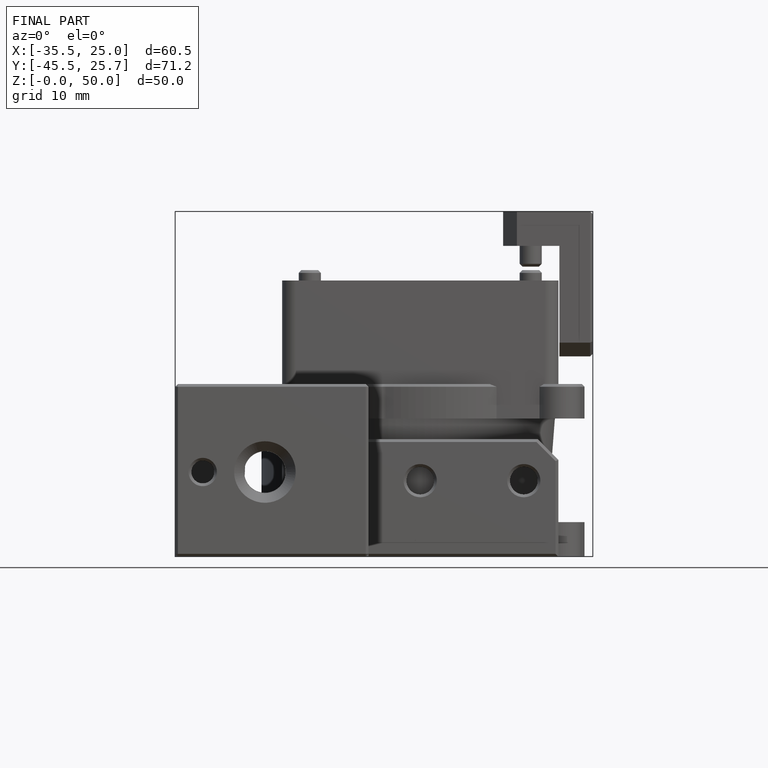
[diagram: finished part — front view with bounding-box wireframe]
